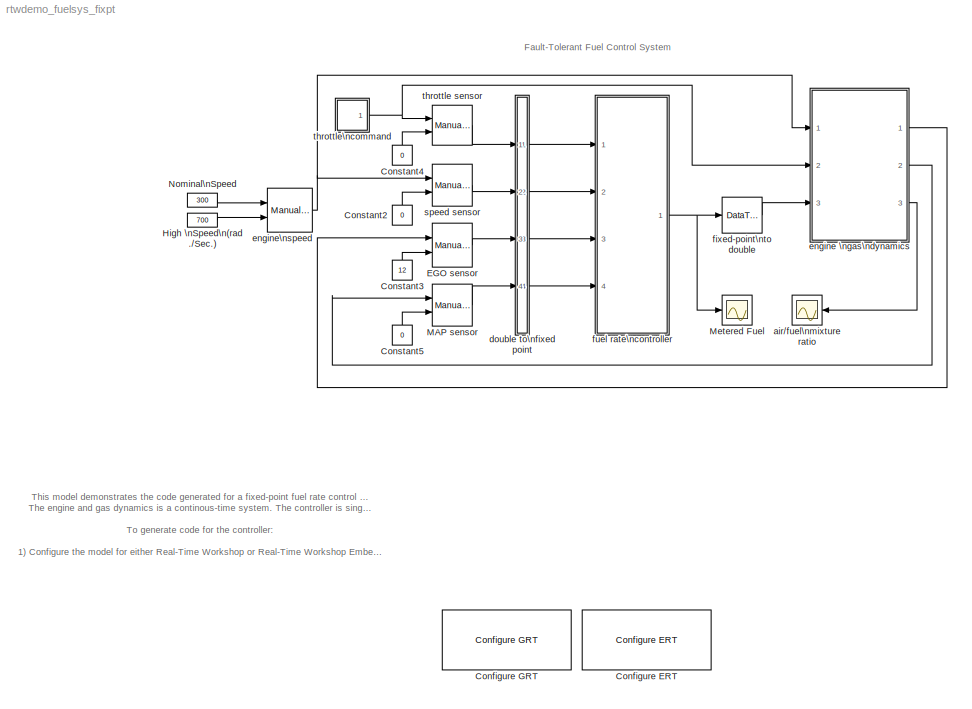
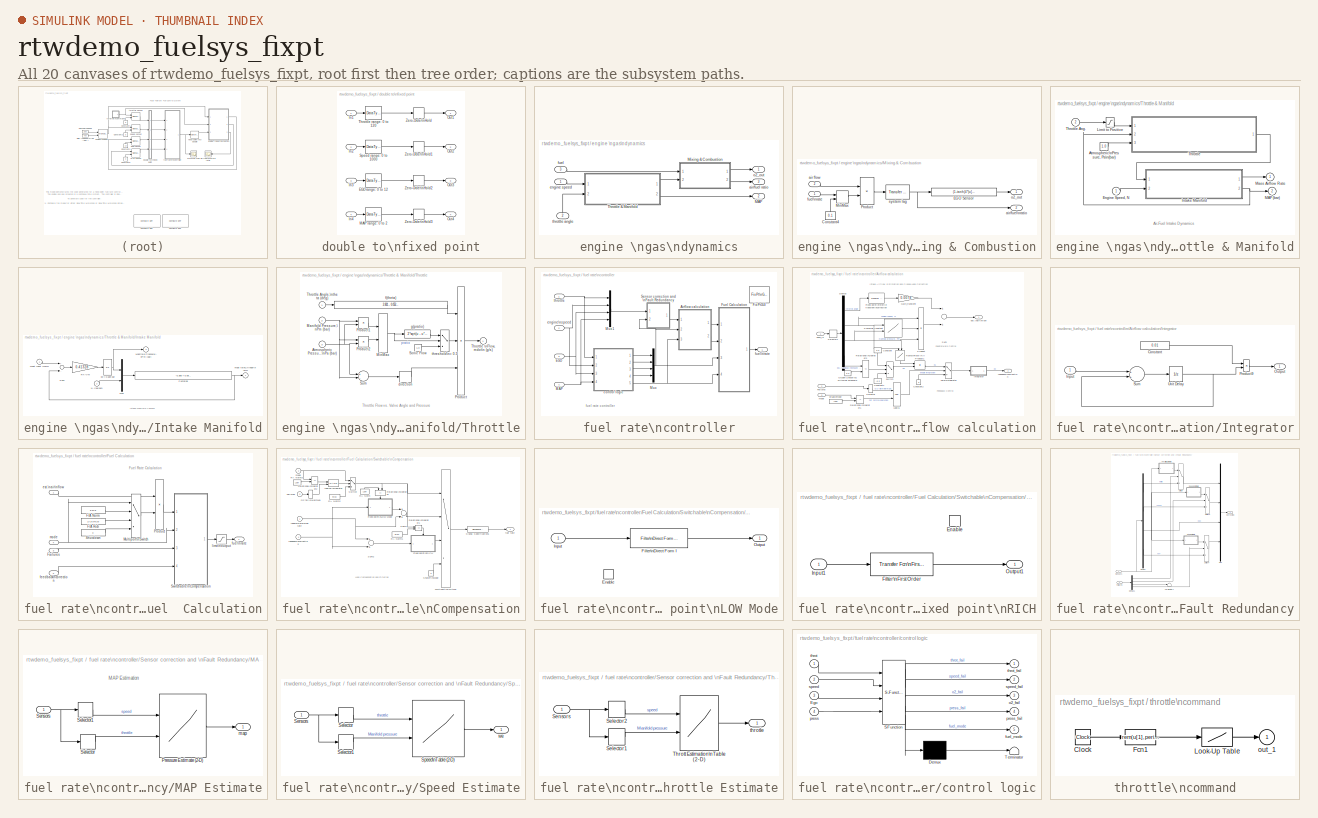
[diagram: thumbnail index - all 20 canvases of the model, root first then tree order]
MODEL rtwdemo_fuelsys_fixpt
KIND model
CONFIG PostLoadFcn = disp(rtwdemolicensecheck('sfsfc'))
CONFIG PreLoadFcn = load rtwdemo_fuelsys_fixpt_data.mat
BLOCK [Reference] Configure ERT  REF=rtwdemowidgets/Configure ERT
  Ports = []
  ShowPortLabels = on
  SourceBlock = rtwdemowidgets/Configure ERT
BLOCK [Reference] Configure GRT  REF=rtwdemowidgets/Configure GRT
  Ports = []
  ShowPortLabels = on
  SourceBlock = rtwdemowidgets/Configure GRT
BLOCK [Constant] Constant2
  Value = 0
BLOCK [Constant] Constant3
  Value = 12
BLOCK [Constant] Constant4
  Value = 0
BLOCK [Constant] Constant5
  Value = 0
BLOCK [Reference] EGO sensor  REF=simulink/Signal\nRouting/Manual Switch
  Ports = [2, 1]
  ShowPortLabels = on
  SourceBlock = simulink/Signal\nRouting/Manual Switch
  SourceType = Manual Switch
  action = 0
  sw = 1
BLOCK [Constant] High \nSpeed\n(rad.//Sec.)
  Value = 700
BLOCK [Reference] MAP sensor  REF=simulink/Signal\nRouting/Manual Switch
  Ports = [2, 1]
  ShowPortLabels = on
  SourceBlock = simulink/Signal\nRouting/Manual Switch
  SourceType = Manual Switch
  action = 0
  sw = 1
BLOCK [Scope] Metered Fuel
  DataFormat = Array
  LimitDataPoints = off
  NumInputPorts = 1
  Ports = [1]
  TickLabels = on
  TimeRange = 8
  YMax = 2.25
  YMin = 0.75
BLOCK [Constant] Nominal\nSpeed
  Value = 300
BLOCK [Scope] air//fuel\nmixture ratio
  DataFormat = Array
  LimitDataPoints = off
  NumInputPorts = 1
  Ports = [1]
  TickLabels = on
  TimeRange = 8
  YMax = 14.62
  YMin = 14.575
BLOCK [SubSystem] double to\nfixed point
  MaskDisplay = disp('')
  MaskIconFrame = on
  MaskIconOpaque = on
  MaskIconRotate = none
  MaskIconUnits = autoscale
  MinAlgLoopOccurrences = off
  Ports = [4, 4]
  PropExecContextAcrossSSBoundary = on
  RTWSystemCode = Auto
  TreatAsAtomicUnit = off
BLOCK [DataTypeConversion] double to\nfixed point/EGO range: 0 to 12
  OutDataTypeMode = Specify via dialog
  OutScaling = 2^-7
  RndMeth = Floor
BLOCK [Inport] double to\nfixed point/In1
  IconDisplay = Port number
  LatchInput = off
  Port = 1
BLOCK [Inport] double to\nfixed point/In2
  IconDisplay = Port number
  LatchInput = off
  Port = 2
BLOCK [Inport] double to\nfixed point/In3
  IconDisplay = Port number
  LatchInput = off
  Port = 3
BLOCK [Inport] double to\nfixed point/In4
  IconDisplay = Port number
  LatchInput = off
  Port = 4
BLOCK [DataTypeConversion] double to\nfixed point/MAP range: 0 to 2
  OutDataTypeMode = Specify via dialog
  OutScaling = 2^-7
  RndMeth = Floor
BLOCK [Outport] double to\nfixed point/Out1
  BusOutputAsStruct = off
  IconDisplay = Port number
BLOCK [Outport] double to\nfixed point/Out2
  BusOutputAsStruct = off
  IconDisplay = Port number
  Port = 2
BLOCK [Outport] double to\nfixed point/Out3
  BusOutputAsStruct = off
  IconDisplay = Port number
  Port = 3
BLOCK [Outport] double to\nfixed point/Out4
  BusOutputAsStruct = off
  IconDisplay = Port number
  Port = 4
BLOCK [DataTypeConversion] double to\nfixed point/Speed range: 0 to 1000
  OutDataTypeMode = Specify via dialog
  OutScaling = 2^-1
  RndMeth = Floor
BLOCK [DataTypeConversion] double to\nfixed point/Throttle range: 0 to 120
  OutDataTypeMode = Specify via dialog
  OutScaling = 2^-5
  RndMeth = Floor
BLOCK [ZeroOrderHold] double to\nfixed point/Zero-Order\nHold
  SampleTime = 0.01
BLOCK [ZeroOrderHold] double to\nfixed point/Zero-Order\nHold1
  SampleTime = 0.01
BLOCK [ZeroOrderHold] double to\nfixed point/Zero-Order\nHold2
  SampleTime = 0.01
BLOCK [ZeroOrderHold] double to\nfixed point/Zero-Order\nHold3
  SampleTime = 0.01
BLOCK [SubSystem] engine \ngas\ndynamics
  MinAlgLoopOccurrences = off
  Ports = [3, 3]
  PropExecContextAcrossSSBoundary = on
  RTWSystemCode = Auto
  TreatAsAtomicUnit = off
BLOCK [Outport] engine \ngas\ndynamics/MAP
  BusOutputAsStruct = off
  IconDisplay = Port number
  InitialOutput = 0
  Port = 2
BLOCK [SubSystem] engine \ngas\ndynamics/Mixing & Combustion
  MinAlgLoopOccurrences = off
  Ports = [2, 2]
  PropExecContextAcrossSSBoundary = on
  RTWSystemCode = Auto
  TreatAsAtomicUnit = off
BLOCK [Constant] engine \ngas\ndynamics/Mixing & Combustion/Constant4
  Value = 0.1
BLOCK [Fcn] engine \ngas\ndynamics/Mixing & Combustion/EGO Sensor
  Expr = (1-tanh(4*(u[1]-14.6)))/2
BLOCK [MinMax] engine \ngas\ndynamics/Mixing & Combustion/MinMax
  Function = max
  Inputs = 2
  Ports = [2, 1]
BLOCK [Product] engine \ngas\ndynamics/Mixing & Combustion/Product
  Inputs = */
  Ports = [2, 1]
BLOCK [Inport] engine \ngas\ndynamics/Mixing & Combustion/air flow
  IconDisplay = Port number
  LatchInput = off
  Port = 2
BLOCK [Outport] engine \ngas\ndynamics/Mixing & Combustion/air//fuel\nratio
  BusOutputAsStruct = off
  IconDisplay = Port number
  InitialOutput = 0
  Port = 2
BLOCK [Inport] engine \ngas\ndynamics/Mixing & Combustion/fuel\nrate
  IconDisplay = Port number
  LatchInput = off
  Port = 1
BLOCK [Outport] engine \ngas\ndynamics/Mixing & Combustion/o2_out
  BusOutputAsStruct = off
  IconDisplay = Port number
  InitialOutput = 0
BLOCK [Reference] engine \ngas\ndynamics/Mixing & Combustion/system lag  REF=simulink_extras/Additional\nLinear/Transfer Fcn\n(with initial outputs)
  D = [1 3]
  N = 3
  Ports = [1, 1]
  ShowPortLabels = on
  SourceBlock = simulink_extras/Additional\nLinear/Transfer Fcn\n(with initial outputs)
  SourceType = Transfer Function with Initial Outputs
  U0 = 1/14.6
  Y0 = 1/14.6
BLOCK [SubSystem] engine \ngas\ndynamics/Throttle & Manifold
  MinAlgLoopOccurrences = off
  Ports = [2, 2]
  PropExecContextAcrossSSBoundary = on
  RTWSystemCode = Auto
  TreatAsAtomicUnit = off
BLOCK [Constant] engine \ngas\ndynamics/Throttle & Manifold/Atmospheric\nPressure, Pa\n(bar)
  Value = 1.0
BLOCK [Inport] engine \ngas\ndynamics/Throttle & Manifold/Engine Speed, N
  IconDisplay = Port number
  LatchInput = off
  Port = 1
BLOCK [SubSystem] engine \ngas\ndynamics/Throttle & Manifold/Intake Manifold
  MinAlgLoopOccurrences = off
  Ports = [2, 2]
  PropExecContextAcrossSSBoundary = on
  RTWSystemCode = Auto
  TreatAsAtomicUnit = off
BLOCK [Outport] engine \ngas\ndynamics/Throttle & Manifold/Intake Manifold/Manifold Pressure,\nPm (bar)
  BusOutputAsStruct = off
  IconDisplay = Port number
  InitialOutput = 0
  Port = 2
BLOCK [Mux] engine \ngas\ndynamics/Throttle & Manifold/Intake Manifold/Mux
  Inputs = 2
  Ports = [2, 1]
BLOCK [Inport] engine \ngas\ndynamics/Throttle & Manifold/Intake Manifold/N (rad//sec)
  IconDisplay = Port number
  LatchInput = off
  Port = 2
BLOCK [Fcn] engine \ngas\ndynamics/Throttle & Manifold/Intake Manifold/Pumping
  Expr = -0.366 + 0.08979*u[1]*u[2] - 0.0337*u[2]*u[1]*u[1] + 0.0001*u[1]*u[2]*u[2]
BLOCK [Gain] engine \ngas\ndynamics/Throttle & Manifold/Intake Manifold/RT//Vm
  Gain = 0.41328
BLOCK [Sum] engine \ngas\ndynamics/Throttle & Manifold/Intake Manifold/Sum
  Inputs = +-
  Ports = [2, 1]
BLOCK [Inport] engine \ngas\ndynamics/Throttle & Manifold/Intake Manifold/mdot Input \n(g//s)
  IconDisplay = Port number
  LatchInput = off
  Port = 1
BLOCK [Outport] engine \ngas\ndynamics/Throttle & Manifold/Intake Manifold/mdot to\nCylinder\n (g//s)
  BusOutputAsStruct = off
  IconDisplay = Port number
  InitialOutput = 0
BLOCK [Integrator] engine \ngas\ndynamics/Throttle & Manifold/Intake Manifold/p0 = 0.589 bar
  InitialCondition = .589
  Ports = [1, 1]
BLOCK [Saturate] engine \ngas\ndynamics/Throttle & Manifold/Limit to Positive
  LowerLimit = 0
  UpperLimit = inf
BLOCK [Outport] engine \ngas\ndynamics/Throttle & Manifold/MAP (bar)
  BusOutputAsStruct = off
  IconDisplay = Port number
  InitialOutput = 0
  Port = 2
BLOCK [Outport] engine \ngas\ndynamics/Throttle & Manifold/Mass Airflow Rate
  BusOutputAsStruct = off
  IconDisplay = Port number
  InitialOutput = 0
BLOCK [SubSystem] engine \ngas\ndynamics/Throttle & Manifold/Throttle
  MinAlgLoopOccurrences = off
  Ports = [3, 1]
  PropExecContextAcrossSSBoundary = on
  RTWSystemCode = Auto
  TreatAsAtomicUnit = off
BLOCK [Inport] engine \ngas\ndynamics/Throttle & Manifold/Throttle Ang.
  IconDisplay = Port number
  LatchInput = off
  Port = 2
BLOCK [Inport] engine \ngas\ndynamics/Throttle & Manifold/Throttle/Atmospheric Pressure,\nPa (bar) 
  IconDisplay = Port number
  LatchInput = off
  Port = 3
BLOCK [Inport] engine \ngas\ndynamics/Throttle & Manifold/Throttle/Manifold Pressure,\nPm (bar)
  IconDisplay = Port number
  LatchInput = off
  Port = 2
BLOCK [MinMax] engine \ngas\ndynamics/Throttle & Manifold/Throttle/MinMax
  Function = min
  Inputs = 2
  Ports = [2, 1]
BLOCK [Product] engine \ngas\ndynamics/Throttle & Manifold/Throttle/Product
  Inputs = 3
  Ports = [3, 1]
BLOCK [Product] engine \ngas\ndynamics/Throttle & Manifold/Throttle/Product1
  Inputs = */
  Ports = [2, 1]
BLOCK [Product] engine \ngas\ndynamics/Throttle & Manifold/Throttle/Product2
  Inputs = /*
  Ports = [2, 1]
BLOCK [Constant] engine \ngas\ndynamics/Throttle & Manifold/Throttle/Sonic Flow 
  Value = 1.0
BLOCK [Sum] engine \ngas\ndynamics/Throttle & Manifold/Throttle/Sum
  Inputs = +-
  Ports = [2, 1]
BLOCK [Inport] engine \ngas\ndynamics/Throttle & Manifold/Throttle/Throttle Angle,\ntheta (deg)
  IconDisplay = Port number
  LatchInput = off
  Port = 1
BLOCK [Outport] engine \ngas\ndynamics/Throttle & Manifold/Throttle/Throttle \nFlow, mdot\n (g//s)
  BusOutputAsStruct = off
  IconDisplay = Port number
  InitialOutput = 0
BLOCK [Signum] engine \ngas\ndynamics/Throttle & Manifold/Throttle/direction
BLOCK [Fcn] engine \ngas\ndynamics/Throttle & Manifold/Throttle/f(theta)
  Expr = 2.821 - 0.05231*u[1] + 0.10299*u[1]*u[1] - 0.00063*u[1]*u[1]*u[1]
BLOCK [Fcn] engine \ngas\ndynamics/Throttle & Manifold/Throttle/g(pratio)
  Expr = 2*sqrt(u - u*u)
BLOCK [Switch] engine \ngas\ndynamics/Throttle & Manifold/Throttle/threshold\n= 0.5
  Threshold = 0.5
BLOCK [Outport] engine \ngas\ndynamics/air//fuel ratio
  BusOutputAsStruct = off
  IconDisplay = Port number
  InitialOutput = 0
  Port = 3
BLOCK [Inport] engine \ngas\ndynamics/engine speed
  IconDisplay = Port number
  LatchInput = off
  Port = 1
BLOCK [Inport] engine \ngas\ndynamics/fuel
  IconDisplay = Port number
  LatchInput = off
  Port = 3
BLOCK [Outport] engine \ngas\ndynamics/o2_out
  BusOutputAsStruct = off
  IconDisplay = Port number
  InitialOutput = 0
BLOCK [Inport] engine \ngas\ndynamics/throttle angle
  IconDisplay = Port number
  LatchInput = off
  Port = 2
BLOCK [Reference] engine\nspeed  REF=simulink/Signal\nRouting/Manual Switch
  Ports = [2, 1]
  ShowPortLabels = on
  SourceBlock = simulink/Signal\nRouting/Manual Switch
  SourceType = Manual Switch
  action = 0
  sw = 1
BLOCK [DataTypeConversion] fixed-point\nto double
  OutDataTypeMode = double
  RndMeth = Floor
  SaturateOnIntegerOverflow = off
BLOCK [SubSystem] fuel rate\ncontroller
  MinAlgLoopOccurrences = off
  Ports = [4, 1]
  PropExecContextAcrossSSBoundary = on
  RTWSystemCode = Auto
  TreatAsAtomicUnit = off
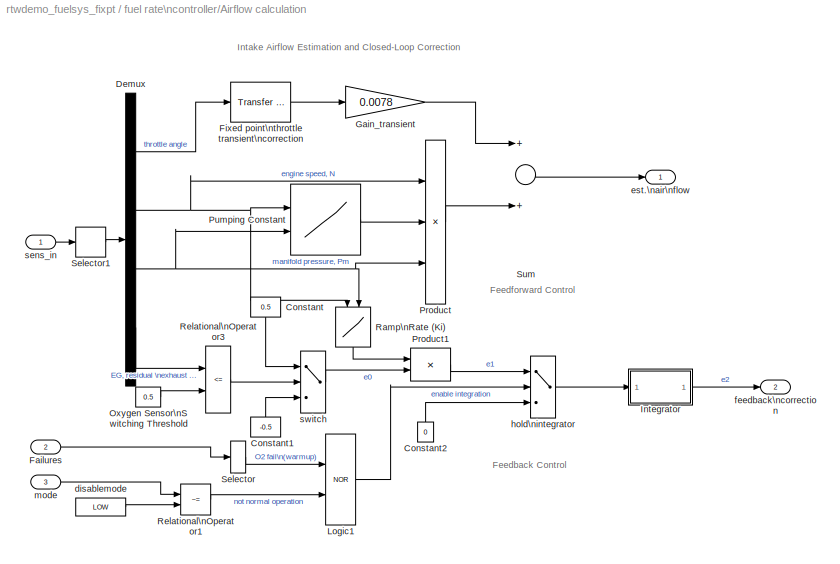
BLOCK [SubSystem] fuel rate\ncontroller/Airflow calculation
  MinAlgLoopOccurrences = off
  Ports = [3, 2]
  PropExecContextAcrossSSBoundary = on
  RTWSystemCode = Auto
  TreatAsAtomicUnit = off
BLOCK [Constant] fuel rate\ncontroller/Airflow calculation/Constant
  OutDataTypeMode = Inherit via back propagation
  Value = 0.5
BLOCK [Constant] fuel rate\ncontroller/Airflow calculation/Constant1
  OutDataTypeMode = Inherit via back propagation
  Value = -0.5
BLOCK [Constant] fuel rate\ncontroller/Airflow calculation/Constant2
  OutDataTypeMode = Inherit via back propagation
  Value = 0
BLOCK [Demux] fuel rate\ncontroller/Airflow calculation/Demux
  Ports = [1, 4]
BLOCK [Inport] fuel rate\ncontroller/Airflow calculation/Failures
  IconDisplay = Port number
  LatchInput = off
  Port = 2
BLOCK [Reference] fuel rate\ncontroller/Airflow calculation/Fixed point\nthrottle transient\ncorrection  REF=simulink/Discrete/Transfer Fcn\nLead or Lag
  DoSatur = off
  ICPrevInput = 0.0
  ICPrevOutput = 0.0
  PoleZ = 0.8
  Ports = [1, 1]
  RndMeth = Floor
  ShowPortLabels = on
  SourceBlock = simulink/Discrete/Transfer Fcn\nLead or Lag
  SourceType = Lead or Lag Compensator
  ZeroZ = 1
BLOCK [Gain] fuel rate\ncontroller/Airflow calculation/Gain_transient
  Gain = 0.0078
  OutDataTypeMode = Specify via dialog
  OutScaling = 2^-8
BLOCK [SubSystem] fuel rate\ncontroller/Airflow calculation/Integrator
  Description = REQ: PM=30deg, GM=6db\n
  MaskDisplay = disp('T/(Z-1)')
  MaskIconFrame = on
  MaskIconOpaque = on
  MaskIconRotate = none
  MaskIconUnits = autoscale
  MinAlgLoopOccurrences = off
  Ports = [1, 1]
  PropExecContextAcrossSSBoundary = on
  RTWSystemCode = Auto
  TreatAsAtomicUnit = off
BLOCK [Constant] fuel rate\ncontroller/Airflow calculation/Integrator/Constant
  OutDataTypeMode = Specify via dialog
  OutScaling = 2^-12
  Value = 0.01
BLOCK [Inport] fuel rate\ncontroller/Airflow calculation/Integrator/Input
  IconDisplay = Port number
  LatchInput = off
  Port = 1
BLOCK [Outport] fuel rate\ncontroller/Airflow calculation/Integrator/Output
  BusOutputAsStruct = off
  IconDisplay = Port number
BLOCK [Product] fuel rate\ncontroller/Airflow calculation/Integrator/Product9
  InputSameDT = off
  OutScaling = 2^-8
  Ports = [2, 1]
  RndMeth = Floor
BLOCK [Sum] fuel rate\ncontroller/Airflow calculation/Integrator/Sum
  InputSameDT = off
  LockScale = on
  OutDataType = sfix(32)
  OutDataTypeMode = Inherit via internal rule
  OutScaling = 2^(-26)
  Ports = [2, 1]
  Tag = S16 2^-10
BLOCK [UnitDelay] fuel rate\ncontroller/Airflow calculation/Integrator/Unit Delay
  SampleTime = 0.01
  X0 = -1
BLOCK [Logic] fuel rate\ncontroller/Airflow calculation/Logic1
  Operator = NOR
  Ports = [2, 1]
BLOCK [Constant] fuel rate\ncontroller/Airflow calculation/Oxygen Sensor\nSwitching Threshold
  OutDataTypeMode = Inherit via back propagation
  Value = 0.5
BLOCK [Product] fuel rate\ncontroller/Airflow calculation/Product
  InputSameDT = off
  Inputs = 3
  OutDataTypeMode = Specify via dialog
  OutScaling = 2^-8
  Ports = [3, 1]
  RndMeth = Floor
BLOCK [Product] fuel rate\ncontroller/Airflow calculation/Product1
  Ports = [2, 1]
  RndMeth = Floor
BLOCK [Lookup2D] fuel rate\ncontroller/Airflow calculation/Pumping Constant
  ColumnIndex = c166_fixpt_evenspace_cleanup(press,sfix(16),2^-14)
  DialogController = Simulink.DDGSource
  InputSameDT = off
  LookUpMeth = Interpolation-Use End Values
  OutDataTypeMode = Specify via dialog
  OutScaling = 2^-16
  OutputValues = pumpCon
  RowIndex = SpeedVect
BLOCK [Lookup2D] fuel rate\ncontroller/Airflow calculation/Ramp\nRate (Ki)
  ColumnIndex = c166_fixpt_evenspace_cleanup([0:0.2:1],sfix(16),2^-14)
  DialogController = Simulink.DDGSource
  InputSameDT = off
  LookUpMeth = Interpolation-Use End Values
  OutDataTypeMode = Specify via dialog
  OutScaling = 2^-8
  OutputValues = [1:5]'*[1:6]*Ki
  RowIndex = [100:100:500]
BLOCK [RelationalOperator] fuel rate\ncontroller/Airflow calculation/Relational\nOperator1
  Operator = ~=
BLOCK [RelationalOperator] fuel rate\ncontroller/Airflow calculation/Relational\nOperator3
  Operator = <=
BLOCK [Selector] fuel rate\ncontroller/Airflow calculation/Selector
  Elements = 3
  InputPortWidth = 4
  Ports = [1, 1]
BLOCK [Selector] fuel rate\ncontroller/Airflow calculation/Selector1
  Elements = [1 2 4 3]
  InputPortWidth = 4
  Ports = [1, 1]
BLOCK [Sum] fuel rate\ncontroller/Airflow calculation/Sum
  Inputs = 2
  Ports = [2, 1]
BLOCK [Constant] fuel rate\ncontroller/Airflow calculation/disablemode
  Value = LOW
BLOCK [Outport] fuel rate\ncontroller/Airflow calculation/est.\nair\nflow
  BusOutputAsStruct = off
  IconDisplay = Port number
  InitialOutput = 0
BLOCK [Outport] fuel rate\ncontroller/Airflow calculation/feedback\ncorrection
  BusOutputAsStruct = off
  IconDisplay = Port number
  InitialOutput = 0
  Port = 2
BLOCK [Switch] fuel rate\ncontroller/Airflow calculation/hold\nintegrator
  Threshold = 1
BLOCK [Inport] fuel rate\ncontroller/Airflow calculation/mode
  IconDisplay = Port number
  LatchInput = off
  Port = 3
BLOCK [Inport] fuel rate\ncontroller/Airflow calculation/sens_in
  IconDisplay = Port number
  LatchInput = off
  Port = 1
BLOCK [Switch] fuel rate\ncontroller/Airflow calculation/switch
  Criteria = u2 ~= 0
  Threshold = 1
BLOCK [Inport] fuel rate\ncontroller/EGO
  IconDisplay = Port number
  LatchInput = off
  Port = 3
BLOCK [Reference] fuel rate\ncontroller/FixPtGUI  REF=fixpt_lib_4/FixPt\nGUI  (lib defined in mdl_ef9dacb0d1df)
  Ports = []
  ShowPortLabels = on
  SourceBlock = fixpt_lib_4/FixPt\nGUI
  SourceType = Fixed-Point GUI
BLOCK [SubSystem] fuel rate\ncontroller/Fuel  Calculation
  MinAlgLoopOccurrences = off
  Ports = [4, 1]
  PropExecContextAcrossSSBoundary = on
  RTWSystemCode = Auto
  TreatAsAtomicUnit = off
BLOCK [Constant] fuel rate\ncontroller/Fuel  Calculation/F//A Norm
  OutDataTypeMode = Inherit via back propagation
  Value = 1/14.6
BLOCK [Constant] fuel rate\ncontroller/Fuel  Calculation/F//A Rich
  OutDataTypeMode = Inherit via back propagation
  Value = 1/(14.6*0.8)
BLOCK [Inport] fuel rate\ncontroller/Fuel  Calculation/Failures
  IconDisplay = Port number
  LatchInput = off
  Port = 3
BLOCK [MultiPortSwitch] fuel rate\ncontroller/Fuel  Calculation/Multiport\nSwitch
  Inputs = 3
  Ports = [4, 1]
BLOCK [Product] fuel rate\ncontroller/Fuel  Calculation/Product
  OutDataTypeMode = Specify via dialog
  OutScaling = 2^-12
  Ports = [2, 1]
  RndMeth = Floor
BLOCK [Constant] fuel rate\ncontroller/Fuel  Calculation/Shutdown
  OutDataTypeMode = Inherit via back propagation
  Value = 0
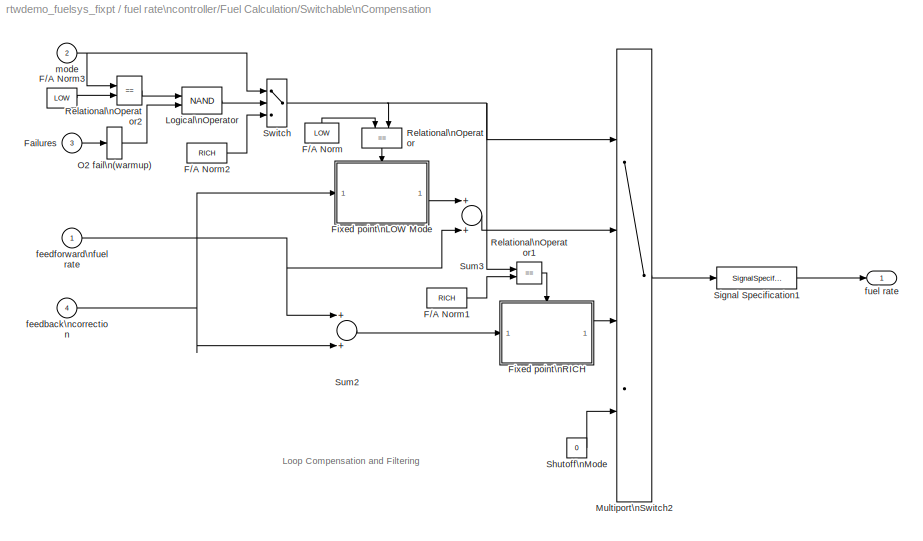
BLOCK [SubSystem] fuel rate\ncontroller/Fuel  Calculation/Switchable\nCompensation
  MaskIconFrame = on
  MaskIconOpaque = on
  MaskIconRotate = none
  MaskIconUnits = autoscale
  MinAlgLoopOccurrences = off
  Ports = [4, 1]
  PropExecContextAcrossSSBoundary = on
  RTWSystemCode = Auto
  TreatAsAtomicUnit = off
BLOCK [Constant] fuel rate\ncontroller/Fuel  Calculation/Switchable\nCompensation/F//A Norm
  Value = LOW
BLOCK [Constant] fuel rate\ncontroller/Fuel  Calculation/Switchable\nCompensation/F//A Norm1
  Value = RICH
BLOCK [Constant] fuel rate\ncontroller/Fuel  Calculation/Switchable\nCompensation/F//A Norm2
  Value = RICH
BLOCK [Constant] fuel rate\ncontroller/Fuel  Calculation/Switchable\nCompensation/F//A Norm3
  Value = LOW
BLOCK [Inport] fuel rate\ncontroller/Fuel  Calculation/Switchable\nCompensation/Failures
  IconDisplay = Port number
  LatchInput = off
  Port = 3
BLOCK [SubSystem] fuel rate\ncontroller/Fuel  Calculation/Switchable\nCompensation/Fixed point\nLOW Mode
  MaskCallbackString = ||||
  MaskDisplay = dpoly(num,den,'z')
  MaskEnableString = on,on,on,on,on
  MaskIconFrame = on
  MaskIconOpaque = off
  MaskIconRotate = none
  MaskIconUnits = autoscale
  MaskPromptString = numerator polynomial|denominator polynomial|initial input|initial output|sample time
  MaskStyleString = edit,edit,edit,edit,edit
  MaskTabNameString = ,,,,
  MaskToolTipString = on,on,on,on,on
  MaskTunableValueString = on,on,on,on,on
  MaskType = enabled discrete-time transfer function
  MaskValueString = B1|A1|-0.01|-0.01|0.01
  MaskVarAliasString = ,,,,
  MaskVariables = num=@1;den=@2;u0=@3;y0=@4;Ts=@5;
  MaskVisibilityString = on,on,on,on,on
  MinAlgLoopOccurrences = off
  Ports = [1, 1, 1]
  PropExecContextAcrossSSBoundary = on
  RTWSystemCode = Auto
  TreatAsAtomicUnit = on
BLOCK [EnablePort] fuel rate\ncontroller/Fuel  Calculation/Switchable\nCompensation/Fixed point\nLOW Mode/Enable
  Ports = []
  StatesWhenEnabling = reset
BLOCK [Reference] fuel rate\ncontroller/Fuel  Calculation/Switchable\nCompensation/Fixed point\nLOW Mode/Filter\nDirect Form I  REF=fixpt_lib_4/Filters/Filter\nDirect Form I  (lib defined in mdl_ef9dacb0d1df)
  DenCoefVec = A1(2)
  DoSatur = off
  ICPrevInput = 0.0
  ICPrevOutput = 0.0
  NumCoefVec = B1
  Ports = [1, 1]
  RndMeth = Floor
  ShowPortLabels = on
  SourceBlock = fixpt_lib_4/Filters/Filter\nDirect Form I
  SourceType = Transfer Fcn Direct Form I
BLOCK [Inport] fuel rate\ncontroller/Fuel  Calculation/Switchable\nCompensation/Fixed point\nLOW Mode/Input
  IconDisplay = Port number
  LatchInput = off
  Port = 1
BLOCK [Outport] fuel rate\ncontroller/Fuel  Calculation/Switchable\nCompensation/Fixed point\nLOW Mode/Output
  BusOutputAsStruct = off
  IconDisplay = Port number
BLOCK [SubSystem] fuel rate\ncontroller/Fuel  Calculation/Switchable\nCompensation/Fixed point\nRICH
  MaskCallbackString = ||||
  MaskDisplay = dpoly(num,den,'z')
  MaskEnableString = on,on,on,on,on
  MaskIconFrame = on
  MaskIconOpaque = off
  MaskIconRotate = none
  MaskIconUnits = autoscale
  MaskPromptString = numerator polynomial|denominator polynomial|initial input|initial output|sample time
  MaskStyleString = edit,edit,edit,edit,edit
  MaskTabNameString = ,,,,
  MaskToolTipString = on,on,on,on,on
  MaskTunableValueString = on,on,on,on,on
  MaskType = enabled discrete-time transfer function
  MaskValueString = B2|A2|1.6|1.6|0.01
  MaskVarAliasString = ,,,,
  MaskVariables = num=@1;den=@2;u0=@3;y0=@4;Ts=@5;
  MaskVisibilityString = on,on,on,on,on
  MinAlgLoopOccurrences = off
  Ports = [1, 1, 1]
  PropExecContextAcrossSSBoundary = on
  RTWSystemCode = Auto
  TreatAsAtomicUnit = on
BLOCK [EnablePort] fuel rate\ncontroller/Fuel  Calculation/Switchable\nCompensation/Fixed point\nRICH/Enable
  Ports = []
  StatesWhenEnabling = reset
BLOCK [Reference] fuel rate\ncontroller/Fuel  Calculation/Switchable\nCompensation/Fixed point\nRICH/Filter\nFirst Order  REF=simulink/Discrete/Transfer Fcn\nFirst Order
  DoSatur = off
  ICPrevOutput = y0
  PoleZ = -den(2)
  Ports = [1, 1]
  RndMeth = Floor
  ShowPortLabels = on
  SourceBlock = simulink/Discrete/Transfer Fcn\nFirst Order
  SourceType = First Order Transfer Fcn
BLOCK [Inport] fuel rate\ncontroller/Fuel  Calculation/Switchable\nCompensation/Fixed point\nRICH/Input1
  IconDisplay = Port number
  LatchInput = off
  Port = 1
BLOCK [Outport] fuel rate\ncontroller/Fuel  Calculation/Switchable\nCompensation/Fixed point\nRICH/Output1
  BusOutputAsStruct = off
  IconDisplay = Port number
BLOCK [Logic] fuel rate\ncontroller/Fuel  Calculation/Switchable\nCompensation/Logical\nOperator
  Operator = NAND
  Ports = [2, 1]
BLOCK [MultiPortSwitch] fuel rate\ncontroller/Fuel  Calculation/Switchable\nCompensation/Multiport\nSwitch2
  Inputs = 3
  Ports = [4, 1]
BLOCK [Selector] fuel rate\ncontroller/Fuel  Calculation/Switchable\nCompensation/O2 fail\n(warmup)
  Elements = 3
  InputPortWidth = 4
  Ports = [1, 1]
BLOCK [RelationalOperator] fuel rate\ncontroller/Fuel  Calculation/Switchable\nCompensation/Relational\nOperator
  Operator = ==
BLOCK [RelationalOperator] fuel rate\ncontroller/Fuel  Calculation/Switchable\nCompensation/Relational\nOperator1
  Operator = ==
BLOCK [RelationalOperator] fuel rate\ncontroller/Fuel  Calculation/Switchable\nCompensation/Relational\nOperator2
  Operator = ==
BLOCK [Constant] fuel rate\ncontroller/Fuel  Calculation/Switchable\nCompensation/Shutoff\nMode
  OutDataTypeMode = Inherit via back propagation
  Value = 0
BLOCK [SignalSpecification] fuel rate\ncontroller/Fuel  Calculation/Switchable\nCompensation/Signal Specification1
  SampleTime = 0.01
BLOCK [Sum] fuel rate\ncontroller/Fuel  Calculation/Switchable\nCompensation/Sum2
  OutDataTypeMode = Specify via dialog
  OutScaling = 2^-8
  Ports = [2, 1]
BLOCK [Sum] fuel rate\ncontroller/Fuel  Calculation/Switchable\nCompensation/Sum3
  InputSameDT = off
  Ports = [2, 1]
BLOCK [Switch] fuel rate\ncontroller/Fuel  Calculation/Switchable\nCompensation/Switch
  Threshold = 1
BLOCK [Inport] fuel rate\ncontroller/Fuel  Calculation/Switchable\nCompensation/feedback\ncorrection
  IconDisplay = Port number
  LatchInput = off
  Port = 4
BLOCK [Inport] fuel rate\ncontroller/Fuel  Calculation/Switchable\nCompensation/feedforward\nfuel rate
  IconDisplay = Port number
  LatchInput = off
  Port = 1
BLOCK [Outport] fuel rate\ncontroller/Fuel  Calculation/Switchable\nCompensation/fuel rate
  BusOutputAsStruct = off
  IconDisplay = Port number
  InitialOutput = 0
BLOCK [Inport] fuel rate\ncontroller/Fuel  Calculation/Switchable\nCompensation/mode
  IconDisplay = Port number
  LatchInput = off
  Port = 2
BLOCK [Inport] fuel rate\ncontroller/Fuel  Calculation/est.\nair\nflow
  IconDisplay = Port number
  LatchInput = off
  Port = 1
BLOCK [Inport] fuel rate\ncontroller/Fuel  Calculation/feedback\ncorrection
  IconDisplay = Port number
  LatchInput = off
  Port = 2
BLOCK [Outport] fuel rate\ncontroller/Fuel  Calculation/fuel\nrate
  BusOutputAsStruct = off
  IconDisplay = Port number
  InitialOutput = 0
BLOCK [Saturate] fuel rate\ncontroller/Fuel  Calculation/limit\noutput
  LowerLimit = 0
  UpperLimit = 100
BLOCK [Inport] fuel rate\ncontroller/Fuel  Calculation/mode
  IconDisplay = Port number
  LatchInput = off
  Port = 4
BLOCK [Inport] fuel rate\ncontroller/MAP
  IconDisplay = Port number
  LatchInput = off
  Port = 4
BLOCK [Mux] fuel rate\ncontroller/Mux
  Ports = [4, 1]
BLOCK [Mux] fuel rate\ncontroller/Mux1
  Ports = [4, 1]
BLOCK [SubSystem] fuel rate\ncontroller/Sensor correction and \nFault Redundancy
  MinAlgLoopOccurrences = off
  Ports = [2, 1]
  PropExecContextAcrossSSBoundary = on
  RTWSystemCode = Auto
  TreatAsAtomicUnit = off
BLOCK [Outport] fuel rate\ncontroller/Sensor correction and \nFault Redundancy/Corrected
  BusOutputAsStruct = off
  IconDisplay = Port number
  InitialOutput = 0
BLOCK [Demux] fuel rate\ncontroller/Sensor correction and \nFault Redundancy/Demux
  Ports = [1, 4]
BLOCK [Demux] fuel rate\ncontroller/Sensor correction and \nFault Redundancy/Demux1
  Ports = [1, 4]
BLOCK [Inport] fuel rate\ncontroller/Sensor correction and \nFault Redundancy/Failures
  IconDisplay = Port number
  LatchInput = off
  Port = 2
BLOCK [SubSystem] fuel rate\ncontroller/Sensor correction and \nFault Redundancy/MAP Estimate
  MinAlgLoopOccurrences = off
  Ports = [1, 1]
  PropExecContextAcrossSSBoundary = on
  RTWSystemCode = Auto
  TreatAsAtomicUnit = on
BLOCK [Lookup2D] fuel rate\ncontroller/Sensor correction and \nFault Redundancy/MAP Estimate/Pressure Estimate (2-D)
  ColumnIndex = ThrotVect
  DialogController = Simulink.DDGSource
  InputSameDT = off
  LookUpMeth = Interpolation-Use End Values
  OutDataTypeMode = Specify via dialog
  OutScaling = 2^-14
  OutputValues = PressEst
  RowIndex = SpeedVect
BLOCK [Selector] fuel rate\ncontroller/Sensor correction and \nFault Redundancy/MAP Estimate/Selector
  InputPortWidth = 4
  Ports = [1, 1]
BLOCK [Selector] fuel rate\ncontroller/Sensor correction and \nFault Redundancy/MAP Estimate/Selector1
  Elements = 2
  InputPortWidth = 4
  Ports = [1, 1]
BLOCK [Inport] fuel rate\ncontroller/Sensor correction and \nFault Redundancy/MAP Estimate/Sensors
  IconDisplay = Port number
  LatchInput = off
  Port = 1
BLOCK [Outport] fuel rate\ncontroller/Sensor correction and \nFault Redundancy/MAP Estimate/map
  BusOutputAsStruct = off
  IconDisplay = Port number
  InitialOutput = 0
BLOCK [Mux] fuel rate\ncontroller/Sensor correction and \nFault Redundancy/Mux
  Ports = [4, 1]
BLOCK [Inport] fuel rate\ncontroller/Sensor correction and \nFault Redundancy/Sensors
  IconDisplay = Port number
  LatchInput = off
  Port = 1
BLOCK [SubSystem] fuel rate\ncontroller/Sensor correction and \nFault Redundancy/Speed Estimate
  MinAlgLoopOccurrences = off
  Ports = [1, 1]
  PropExecContextAcrossSSBoundary = on
  RTWSystemCode = Auto
  TreatAsAtomicUnit = on
BLOCK [Selector] fuel rate\ncontroller/Sensor correction and \nFault Redundancy/Speed Estimate/Selector
  InputPortWidth = 4
  Ports = [1, 1]
BLOCK [Selector] fuel rate\ncontroller/Sensor correction and \nFault Redundancy/Speed Estimate/Selector1
  Elements = 4
  InputPortWidth = 4
  Ports = [1, 1]
BLOCK [Inport] fuel rate\ncontroller/Sensor correction and \nFault Redundancy/Speed Estimate/Sensors
  IconDisplay = Port number
  LatchInput = off
  Port = 1
BLOCK [Lookup2D] fuel rate\ncontroller/Sensor correction and \nFault Redundancy/Speed Estimate/Speed\nTable (2-D)
  ColumnIndex = c166_fixpt_evenspace_cleanup(press,sfix(16),2^-14)
  DialogController = Simulink.DDGSource
  InputSameDT = off
  LookUpMeth = Interpolation-Use End Values
  OutDataTypeMode = Specify via dialog
  OutScaling = 2^-1
  OutputValues = SpeedEst
  RowIndex = ThrotVect
BLOCK [Outport] fuel rate\ncontroller/Sensor correction and \nFault Redundancy/Speed Estimate/we
  BusOutputAsStruct = off
  IconDisplay = Port number
  InitialOutput = 0
BLOCK [Switch] fuel rate\ncontroller/Sensor correction and \nFault Redundancy/Switch
  Threshold = 1
BLOCK [Switch] fuel rate\ncontroller/Sensor correction and \nFault Redundancy/Switch3
  Threshold = 1
BLOCK [Switch] fuel rate\ncontroller/Sensor correction and \nFault Redundancy/Switch4
  InputSameDT = off
  Threshold = 1
BLOCK [Terminator] fuel rate\ncontroller/Sensor correction and \nFault Redundancy/Terminator1
BLOCK [SubSystem] fuel rate\ncontroller/Sensor correction and \nFault Redundancy/Throttle Estimate
  MinAlgLoopOccurrences = off
  Ports = [1, 1]
  PropExecContextAcrossSSBoundary = on
  RTWSystemCode = Auto
  TreatAsAtomicUnit = on
BLOCK [Selector] fuel rate\ncontroller/Sensor correction and \nFault Redundancy/Throttle Estimate/Selector1
  Elements = 4
  InputPortWidth = 4
  Ports = [1, 1]
BLOCK [Selector] fuel rate\ncontroller/Sensor correction and \nFault Redundancy/Throttle Estimate/Selector2
  Elements = 2
  InputPortWidth = 4
  Ports = [1, 1]
BLOCK [Inport] fuel rate\ncontroller/Sensor correction and \nFault Redundancy/Throttle Estimate/Sensors
  IconDisplay = Port number
  LatchInput = off
  Port = 1
BLOCK [Lookup2D] fuel rate\ncontroller/Sensor correction and \nFault Redundancy/Throttle Estimate/Thrott Estimation\nTable (2-D)
  ColumnIndex = c166_fixpt_evenspace_cleanup(press,sfix(16),2^-14)
  DialogController = Simulink.DDGSource
  InputSameDT = off
  LookUpMeth = Interpolation-Use End Values
  OutDataTypeMode = Specify via dialog
  OutScaling = 2^-5
  OutputValues = ThrotEst
  RowIndex = SpeedVect
BLOCK [Outport] fuel rate\ncontroller/Sensor correction and \nFault Redundancy/Throttle Estimate/throtle
  BusOutputAsStruct = off
  IconDisplay = Port number
  InitialOutput = 0
BLOCK [SubSystem] fuel rate\ncontroller/control logic
  Description = Stateflow diagram to determine control system operating mode
  MaskDescription = Stateflow diagram
  MaskDisplay = plot(sf('Private','sfblk','xIcon'),sf('Private','sfblk','yIcon'));text(0.5,0,sf('Private', 'sfblk', 'tIcon'),'HorizontalAl','Center','VerticalAl','Bottom');
  MaskIconFrame = off
  MaskIconOpaque = off
  MaskIconRotate = none
  MaskIconUnits = autoscale
  MaskSelfModifiable = on
  MaskType = Stateflow
  MinAlgLoopOccurrences = off
  Ports = [4, 5]
  PropExecContextAcrossSSBoundary = on
  RTWSystemCode = Auto
  TreatAsAtomicUnit = off
BLOCK [Demux] fuel rate\ncontroller/control logic/ Demux 
  Outputs = 1
  Ports = [1, 1]
BLOCK [S-Function] fuel rate\ncontroller/control logic/ SFunction 
  FunctionName = sf_sfun
  Parameters = DISABLED,LOW,RICH,hys,max_ego,max_press,max_speed,max_throt,min_press,min_throt,zero_thresh
  PortCounts = [4 6]
  Ports = [4, 6]
  Tag = Stateflow S-Function rtwdemo_fuelsys_fixpt 1
BLOCK [Terminator] fuel rate\ncontroller/control logic/ Terminator 
BLOCK [Inport] fuel rate\ncontroller/control logic/Ego
  IconDisplay = Port number
  LatchInput = off
  Port = 3
BLOCK [Outport] fuel rate\ncontroller/control logic/fuel_mode
  BusOutputAsStruct = off
  IconDisplay = Port number
  Port = 5
BLOCK [Outport] fuel rate\ncontroller/control logic/o2_fail
  BusOutputAsStruct = off
  IconDisplay = Port number
  Port = 3
BLOCK [Inport] fuel rate\ncontroller/control logic/press
  IconDisplay = Port number
  LatchInput = off
  Port = 4
BLOCK [Outport] fuel rate\ncontroller/control logic/press_fail
  BusOutputAsStruct = off
  IconDisplay = Port number
  Port = 4
BLOCK [Inport] fuel rate\ncontroller/control logic/speed
  IconDisplay = Port number
  LatchInput = off
  Port = 2
BLOCK [Outport] fuel rate\ncontroller/control logic/speed_fail
  BusOutputAsStruct = off
  IconDisplay = Port number
  Port = 2
BLOCK [Inport] fuel rate\ncontroller/control logic/throt
  IconDisplay = Port number
  LatchInput = off
  Port = 1
BLOCK [Outport] fuel rate\ncontroller/control logic/throt_fail
  BusOutputAsStruct = off
  IconDisplay = Port number
BLOCK [Inport] fuel rate\ncontroller/engine\nspeed
  IconDisplay = Port number
  LatchInput = off
  Port = 2
BLOCK [Outport] fuel rate\ncontroller/fuel\nrate
  BusOutputAsStruct = off
  IconDisplay = Port number
  InitialOutput = 0
BLOCK [Inport] fuel rate\ncontroller/throttle
  IconDisplay = Port number
  LatchInput = off
  Port = 1
BLOCK [Reference] speed sensor  REF=simulink/Signal\nRouting/Manual Switch
  Ports = [2, 1]
  ShowPortLabels = on
  SourceBlock = simulink/Signal\nRouting/Manual Switch
  SourceType = Manual Switch
  action = 0
  sw = 1
BLOCK [Reference] throttle sensor  REF=simulink/Signal\nRouting/Manual Switch
  Ports = [2, 1]
  ShowPortLabels = on
  SourceBlock = simulink/Signal\nRouting/Manual Switch
  SourceType = Manual Switch
  action = 0
  sw = 1
BLOCK [SubSystem] throttle\ncommand
  MaskCallbackString = |
  MaskDescription = Repeating table.
  MaskDisplay = plot([rep_seq_t,rep_seq_t+period,rep_seq_t+2*period,rep_seq_t(1)+3*period],[rep_seq_y,rep_seq_y,rep_seq_y,rep_seq_y(1)])
  MaskEnableString = on,on
  MaskHelp = Repeats cycle given in table. Time values should be monotonically increasing.
  MaskIconFrame = on
  MaskIconOpaque = on
  MaskIconRotate = none
  MaskIconUnits = autoscale
  MaskInitialization = period = max(rep_seq_t);\n
  MaskPromptString = Time values:|Output values:
  MaskStyleString = edit,edit
  MaskTabNameString = ,
  MaskToolTipString = on,on
  MaskTunableValueString = on,on
  MaskType = Repeating table
  MaskValueString = [0 2 4]|[10 20 10]
  MaskVarAliasString = ,
  MaskVariables = rep_seq_t=@1;rep_seq_y=@2;
  MaskVisibilityString = on,on
  MinAlgLoopOccurrences = off
  Ports = [0, 1]
  PropExecContextAcrossSSBoundary = on
  RTWSystemCode = Auto
  TreatAsAtomicUnit = off
BLOCK [Clock] throttle\ncommand/Clock
  Decimation = 10
BLOCK [Fcn] throttle\ncommand/Fcn1
  Expr = rem(u[1],period)
BLOCK [Lookup] throttle\ncommand/Look-Up Table
  DialogController = Simulink.DDGSource
  InputValues = rep_seq_t
  OutputValues = rep_seq_y
BLOCK [Outport] throttle\ncommand/out_1
  BusOutputAsStruct = off
  IconDisplay = Port number
  InitialOutput = 0
ANNOTATION (root): Fault-Tolerant Fuel Control System
ANNOTATION (root): This model demonstrates the code generated for a fixed-point fuel rate control system designed in Simulink and Stateflow.\nThe engine and gas dynamics is a continous-time system. The controller is single rate discrete system.\n\nTo generate code for the controller:\n\n1) Configure the model for either Real-Time Workshop or Real-Time Workshop Embedded Coder code\n generation by double-clicking the ...<+268ch>
ANNOTATION engine \ngas\ndynamics/Throttle & Manifold: Air-Fuel Intake Dynamics
ANNOTATION engine \ngas\ndynamics/Throttle & Manifold/Intake Manifold: Intake Manifold Vacuum
ANNOTATION engine \ngas\ndynamics/Throttle & Manifold/Throttle: Throttle Flow vs. Valve Angle and Pressure
ANNOTATION fuel rate\ncontroller: fuel rate controller
ANNOTATION fuel rate\ncontroller/Airflow calculation: Feedback Control
ANNOTATION fuel rate\ncontroller/Airflow calculation: Feedforward Control
ANNOTATION fuel rate\ncontroller/Airflow calculation: Intake Airflow Estimation and Closed-Loop Correction
ANNOTATION fuel rate\ncontroller/Fuel  Calculation: Fuel Rate Calculation
ANNOTATION fuel rate\ncontroller/Fuel  Calculation/Switchable\nCompensation: Loop Compensation and Filtering
ANNOTATION fuel rate\ncontroller/Sensor correction and \nFault Redundancy/MAP Estimate: MAP Estimation
LINE Constant2:1 -> speed sensor:2
LINE Constant3:1 -> EGO sensor:2
LINE Constant4:1 -> throttle sensor:2
LINE Constant5:1 -> MAP sensor:2
LINE EGO sensor:1 -> double to\nfixed point:3
LINE High \nSpeed\n(rad.//Sec.):1 -> engine\nspeed:2
LINE MAP sensor:1 -> double to\nfixed point:4
LINE Nominal\nSpeed:1 -> engine\nspeed:1
LINE double to\nfixed point/EGO range: 0 to 12:1 -> double to\nfixed point/Zero-Order\nHold2:1
LINE double to\nfixed point/In1:1 -> double to\nfixed point/Throttle range: 0 to 120:1
LINE double to\nfixed point/In2:1 -> double to\nfixed point/Speed range: 0 to 1000:1
LINE double to\nfixed point/In3:1 -> double to\nfixed point/EGO range: 0 to 12:1
LINE double to\nfixed point/In4:1 -> double to\nfixed point/MAP range: 0 to 2:1
LINE double to\nfixed point/MAP range: 0 to 2:1 -> double to\nfixed point/Zero-Order\nHold3:1
LINE double to\nfixed point/Speed range: 0 to 1000:1 -> double to\nfixed point/Zero-Order\nHold1:1
LINE double to\nfixed point/Throttle range: 0 to 120:1 -> double to\nfixed point/Zero-Order\nHold:1
LINE double to\nfixed point/Zero-Order\nHold1:1 -> double to\nfixed point/Out2:1
LINE double to\nfixed point/Zero-Order\nHold2:1 -> double to\nfixed point/Out3:1
LINE double to\nfixed point/Zero-Order\nHold3:1 -> double to\nfixed point/Out4:1
LINE double to\nfixed point/Zero-Order\nHold:1 -> double to\nfixed point/Out1:1
LINE double to\nfixed point:1 -> fuel rate\ncontroller:1
LINE double to\nfixed point:2 -> fuel rate\ncontroller:2
LINE double to\nfixed point:3 -> fuel rate\ncontroller:3
LINE double to\nfixed point:4 -> fuel rate\ncontroller:4
LINE engine \ngas\ndynamics/Mixing & Combustion/Constant4:1 -> engine \ngas\ndynamics/Mixing & Combustion/MinMax:2
LINE engine \ngas\ndynamics/Mixing & Combustion/EGO Sensor:1 -> engine \ngas\ndynamics/Mixing & Combustion/o2_out:1
LINE engine \ngas\ndynamics/Mixing & Combustion/MinMax:1 -> engine \ngas\ndynamics/Mixing & Combustion/Product:2
LINE engine \ngas\ndynamics/Mixing & Combustion/Product:1 -> engine \ngas\ndynamics/Mixing & Combustion/system lag:1
LINE engine \ngas\ndynamics/Mixing & Combustion/air flow:1 -> engine \ngas\ndynamics/Mixing & Combustion/Product:1
LINE engine \ngas\ndynamics/Mixing & Combustion/fuel\nrate:1 -> engine \ngas\ndynamics/Mixing & Combustion/MinMax:1
NET engine \ngas\ndynamics/Mixing & Combustion/system lag:1 -> engine \ngas\ndynamics/Mixing & Combustion/EGO Sensor:1, engine \ngas\ndynamics/Mixing & Combustion/air//fuel\nratio:1
LINE engine \ngas\ndynamics/Mixing & Combustion:1 -> engine \ngas\ndynamics/o2_out:1
LINE engine \ngas\ndynamics/Mixing & Combustion:2 -> engine \ngas\ndynamics/air//fuel ratio:1
LINE engine \ngas\ndynamics/Throttle & Manifold/Atmospheric\nPressure, Pa\n(bar):1 -> engine \ngas\ndynamics/Throttle & Manifold/Throttle:3
LINE engine \ngas\ndynamics/Throttle & Manifold/Engine Speed, N:1 -> engine \ngas\ndynamics/Throttle & Manifold/Intake Manifold:2
LINE engine \ngas\ndynamics/Throttle & Manifold/Intake Manifold/Mux:1 -> engine \ngas\ndynamics/Throttle & Manifold/Intake Manifold/Pumping:1
LINE engine \ngas\ndynamics/Throttle & Manifold/Intake Manifold/N (rad//sec):1 -> engine \ngas\ndynamics/Throttle & Manifold/Intake Manifold/Mux:2
NET engine \ngas\ndynamics/Throttle & Manifold/Intake Manifold/Pumping:1 -> engine \ngas\ndynamics/Throttle & Manifold/Intake Manifold/Sum:2, engine \ngas\ndynamics/Throttle & Manifold/Intake Manifold/mdot to\nCylinder\n (g//s):1
LINE engine \ngas\ndynamics/Throttle & Manifold/Intake Manifold/RT//Vm:1 -> engine \ngas\ndynamics/Throttle & Manifold/Intake Manifold/p0 = 0.589 bar:1
LINE engine \ngas\ndynamics/Throttle & Manifold/Intake Manifold/Sum:1 -> engine \ngas\ndynamics/Throttle & Manifold/Intake Manifold/RT//Vm:1
LINE engine \ngas\ndynamics/Throttle & Manifold/Intake Manifold/mdot Input \n(g//s):1 -> engine \ngas\ndynamics/Throttle & Manifold/Intake Manifold/Sum:1
NET engine \ngas\ndynamics/Throttle & Manifold/Intake Manifold/p0 = 0.589 bar:1 -> engine \ngas\ndynamics/Throttle & Manifold/Intake Manifold/Manifold Pressure,\nPm (bar):1, engine \ngas\ndynamics/Throttle & Manifold/Intake Manifold/Mux:1
LINE engine \ngas\ndynamics/Throttle & Manifold/Intake Manifold:1 -> engine \ngas\ndynamics/Throttle & Manifold/Mass Airflow Rate:1
NET engine \ngas\ndynamics/Throttle & Manifold/Intake Manifold:2 -> engine \ngas\ndynamics/Throttle & Manifold/MAP (bar):1, engine \ngas\ndynamics/Throttle & Manifold/Throttle:2
LINE engine \ngas\ndynamics/Throttle & Manifold/Limit to Positive:1 -> engine \ngas\ndynamics/Throttle & Manifold/Throttle:1
LINE engine \ngas\ndynamics/Throttle & Manifold/Throttle Ang.:1 -> engine \ngas\ndynamics/Throttle & Manifold/Limit to Positive:1
NET engine \ngas\ndynamics/Throttle & Manifold/Throttle/Atmospheric Pressure,\nPa (bar) :1 -> engine \ngas\ndynamics/Throttle & Manifold/Throttle/Product1:2, engine \ngas\ndynamics/Throttle & Manifold/Throttle/Product2:2, engine \ngas\ndynamics/Throttle & Manifold/Throttle/Sum:1
NET engine \ngas\ndynamics/Throttle & Manifold/Throttle/Manifold Pressure,\nPm (bar):1 -> engine \ngas\ndynamics/Throttle & Manifold/Throttle/Product1:1, engine \ngas\ndynamics/Throttle & Manifold/Throttle/Product2:1, engine \ngas\ndynamics/Throttle & Manifold/Throttle/Sum:2
NET engine \ngas\ndynamics/Throttle & Manifold/Throttle/MinMax:1 -> engine \ngas\ndynamics/Throttle & Manifold/Throttle/g(pratio):1, engine \ngas\ndynamics/Throttle & Manifold/Throttle/threshold\n= 0.5:2
LINE engine \ngas\ndynamics/Throttle & Manifold/Throttle/Product1:1 -> engine \ngas\ndynamics/Throttle & Manifold/Throttle/MinMax:1
LINE engine \ngas\ndynamics/Throttle & Manifold/Throttle/Product2:1 -> engine \ngas\ndynamics/Throttle & Manifold/Throttle/MinMax:2
LINE engine \ngas\ndynamics/Throttle & Manifold/Throttle/Product:1 -> engine \ngas\ndynamics/Throttle & Manifold/Throttle/Throttle \nFlow, mdot\n (g//s):1
LINE engine \ngas\ndynamics/Throttle & Manifold/Throttle/Sonic Flow :1 -> engine \ngas\ndynamics/Throttle & Manifold/Throttle/threshold\n= 0.5:3
LINE engine \ngas\ndynamics/Throttle & Manifold/Throttle/Sum:1 -> engine \ngas\ndynamics/Throttle & Manifold/Throttle/direction:1
LINE engine \ngas\ndynamics/Throttle & Manifold/Throttle/Throttle Angle,\ntheta (deg):1 -> engine \ngas\ndynamics/Throttle & Manifold/Throttle/f(theta):1
LINE engine \ngas\ndynamics/Throttle & Manifold/Throttle/direction:1 -> engine \ngas\ndynamics/Throttle & Manifold/Throttle/Product:3
LINE engine \ngas\ndynamics/Throttle & Manifold/Throttle/f(theta):1 -> engine \ngas\ndynamics/Throttle & Manifold/Throttle/Product:1
LINE engine \ngas\ndynamics/Throttle & Manifold/Throttle/g(pratio):1 -> engine \ngas\ndynamics/Throttle & Manifold/Throttle/threshold\n= 0.5:1
LINE engine \ngas\ndynamics/Throttle & Manifold/Throttle/threshold\n= 0.5:1 -> engine \ngas\ndynamics/Throttle & Manifold/Throttle/Product:2
LINE engine \ngas\ndynamics/Throttle & Manifold/Throttle:1 -> engine \ngas\ndynamics/Throttle & Manifold/Intake Manifold:1
LINE engine \ngas\ndynamics/Throttle & Manifold:1 -> engine \ngas\ndynamics/Mixing & Combustion:2
LINE engine \ngas\ndynamics/Throttle & Manifold:2 -> engine \ngas\ndynamics/MAP:1
LINE engine \ngas\ndynamics/engine speed:1 -> engine \ngas\ndynamics/Throttle & Manifold:1
LINE engine \ngas\ndynamics/fuel:1 -> engine \ngas\ndynamics/Mixing & Combustion:1
LINE engine \ngas\ndynamics/throttle angle:1 -> engine \ngas\ndynamics/Throttle & Manifold:2
LINE engine \ngas\ndynamics:1 -> EGO sensor:1
LINE engine \ngas\ndynamics:2 -> MAP sensor:1
LINE engine \ngas\ndynamics:3 -> air//fuel\nmixture ratio:1
NET engine\nspeed:1 -> engine \ngas\ndynamics:1, speed sensor:1
LINE fixed-point\nto double:1 -> engine \ngas\ndynamics:3
LINE fuel rate\ncontroller/Airflow calculation/Constant1:1 -> fuel rate\ncontroller/Airflow calculation/switch:3
LINE fuel rate\ncontroller/Airflow calculation/Constant2:1 -> fuel rate\ncontroller/Airflow calculation/hold\nintegrator:3
LINE fuel rate\ncontroller/Airflow calculation/Constant:1 -> fuel rate\ncontroller/Airflow calculation/switch:1
LINE fuel rate\ncontroller/Airflow calculation/Demux:1 -> fuel rate\ncontroller/Airflow calculation/Fixed point\nthrottle transient\ncorrection:1
NET fuel rate\ncontroller/Airflow calculation/Demux:2 -> fuel rate\ncontroller/Airflow calculation/Product:1, fuel rate\ncontroller/Airflow calculation/Pumping Constant:1, fuel rate\ncontroller/Airflow calculation/Ramp\nRate (Ki):1
NET fuel rate\ncontroller/Airflow calculation/Demux:3 -> fuel rate\ncontroller/Airflow calculation/Product:3, fuel rate\ncontroller/Airflow calculation/Pumping Constant:2, fuel rate\ncontroller/Airflow calculation/Ramp\nRate (Ki):2
LINE fuel rate\ncontroller/Airflow calculation/Demux:4 -> fuel rate\ncontroller/Airflow calculation/Relational\nOperator3:1
LINE fuel rate\ncontroller/Airflow calculation/Failures:1 -> fuel rate\ncontroller/Airflow calculation/Selector:1
LINE fuel rate\ncontroller/Airflow calculation/Fixed point\nthrottle transient\ncorrection:1 -> fuel rate\ncontroller/Airflow calculation/Gain_transient:1
LINE fuel rate\ncontroller/Airflow calculation/Gain_transient:1 -> fuel rate\ncontroller/Airflow calculation/Sum:1
LINE fuel rate\ncontroller/Airflow calculation/Integrator/Constant:1 -> fuel rate\ncontroller/Airflow calculation/Integrator/Product9:1
LINE fuel rate\ncontroller/Airflow calculation/Integrator/Input:1 -> fuel rate\ncontroller/Airflow calculation/Integrator/Sum:1
LINE fuel rate\ncontroller/Airflow calculation/Integrator/Product9:1 -> fuel rate\ncontroller/Airflow calculation/Integrator/Output:1
LINE fuel rate\ncontroller/Airflow calculation/Integrator/Sum:1 -> fuel rate\ncontroller/Airflow calculation/Integrator/Unit Delay:1
NET fuel rate\ncontroller/Airflow calculation/Integrator/Unit Delay:1 -> fuel rate\ncontroller/Airflow calculation/Integrator/Product9:2, fuel rate\ncontroller/Airflow calculation/Integrator/Sum:2
LINE fuel rate\ncontroller/Airflow calculation/Integrator:1 -> fuel rate\ncontroller/Airflow calculation/feedback\ncorrection:1
LINE fuel rate\ncontroller/Airflow calculation/Logic1:1 -> fuel rate\ncontroller/Airflow calculation/hold\nintegrator:2
LINE fuel rate\ncontroller/Airflow calculation/Oxygen Sensor\nSwitching Threshold:1 -> fuel rate\ncontroller/Airflow calculation/Relational\nOperator3:2
LINE fuel rate\ncontroller/Airflow calculation/Product1:1 -> fuel rate\ncontroller/Airflow calculation/hold\nintegrator:1
LINE fuel rate\ncontroller/Airflow calculation/Product:1 -> fuel rate\ncontroller/Airflow calculation/Sum:2
LINE fuel rate\ncontroller/Airflow calculation/Pumping Constant:1 -> fuel rate\ncontroller/Airflow calculation/Product:2
LINE fuel rate\ncontroller/Airflow calculation/Ramp\nRate (Ki):1 -> fuel rate\ncontroller/Airflow calculation/Product1:1
LINE fuel rate\ncontroller/Airflow calculation/Relational\nOperator1:1 -> fuel rate\ncontroller/Airflow calculation/Logic1:2
LINE fuel rate\ncontroller/Airflow calculation/Relational\nOperator3:1 -> fuel rate\ncontroller/Airflow calculation/switch:2
LINE fuel rate\ncontroller/Airflow calculation/Selector1:1 -> fuel rate\ncontroller/Airflow calculation/Demux:1
LINE fuel rate\ncontroller/Airflow calculation/Selector:1 -> fuel rate\ncontroller/Airflow calculation/Logic1:1
LINE fuel rate\ncontroller/Airflow calculation/Sum:1 -> fuel rate\ncontroller/Airflow calculation/est.\nair\nflow:1
LINE fuel rate\ncontroller/Airflow calculation/disablemode:1 -> fuel rate\ncontroller/Airflow calculation/Relational\nOperator1:2
LINE fuel rate\ncontroller/Airflow calculation/hold\nintegrator:1 -> fuel rate\ncontroller/Airflow calculation/Integrator:1
LINE fuel rate\ncontroller/Airflow calculation/mode:1 -> fuel rate\ncontroller/Airflow calculation/Relational\nOperator1:1
LINE fuel rate\ncontroller/Airflow calculation/sens_in:1 -> fuel rate\ncontroller/Airflow calculation/Selector1:1
LINE fuel rate\ncontroller/Airflow calculation/switch:1 -> fuel rate\ncontroller/Airflow calculation/Product1:2
LINE fuel rate\ncontroller/Airflow calculation:1 -> fuel rate\ncontroller/Fuel  Calculation:1
LINE fuel rate\ncontroller/Airflow calculation:2 -> fuel rate\ncontroller/Fuel  Calculation:2
NET fuel rate\ncontroller/EGO:1 -> fuel rate\ncontroller/Mux1:3, fuel rate\ncontroller/control logic:3
LINE fuel rate\ncontroller/Fuel  Calculation/F//A Norm:1 -> fuel rate\ncontroller/Fuel  Calculation/Multiport\nSwitch:2
LINE fuel rate\ncontroller/Fuel  Calculation/F//A Rich:1 -> fuel rate\ncontroller/Fuel  Calculation/Multiport\nSwitch:3
LINE fuel rate\ncontroller/Fuel  Calculation/Failures:1 -> fuel rate\ncontroller/Fuel  Calculation/Switchable\nCompensation:3
LINE fuel rate\ncontroller/Fuel  Calculation/Multiport\nSwitch:1 -> fuel rate\ncontroller/Fuel  Calculation/Product:2
LINE fuel rate\ncontroller/Fuel  Calculation/Product:1 -> fuel rate\ncontroller/Fuel  Calculation/Switchable\nCompensation:1
LINE fuel rate\ncontroller/Fuel  Calculation/Shutdown:1 -> fuel rate\ncontroller/Fuel  Calculation/Multiport\nSwitch:4
LINE fuel rate\ncontroller/Fuel  Calculation/Switchable\nCompensation/F//A Norm1:1 -> fuel rate\ncontroller/Fuel  Calculation/Switchable\nCompensation/Relational\nOperator1:2
LINE fuel rate\ncontroller/Fuel  Calculation/Switchable\nCompensation/F//A Norm2:1 -> fuel rate\ncontroller/Fuel  Calculation/Switchable\nCompensation/Switch:3
LINE fuel rate\ncontroller/Fuel  Calculation/Switchable\nCompensation/F//A Norm3:1 -> fuel rate\ncontroller/Fuel  Calculation/Switchable\nCompensation/Relational\nOperator2:2
LINE fuel rate\ncontroller/Fuel  Calculation/Switchable\nCompensation/F//A Norm:1 -> fuel rate\ncontroller/Fuel  Calculation/Switchable\nCompensation/Relational\nOperator:1
LINE fuel rate\ncontroller/Fuel  Calculation/Switchable\nCompensation/Failures:1 -> fuel rate\ncontroller/Fuel  Calculation/Switchable\nCompensation/O2 fail\n(warmup):1
LINE fuel rate\ncontroller/Fuel  Calculation/Switchable\nCompensation/Fixed point\nLOW Mode/Filter\nDirect Form I:1 -> fuel rate\ncontroller/Fuel  Calculation/Switchable\nCompensation/Fixed point\nLOW Mode/Output:1
LINE fuel rate\ncontroller/Fuel  Calculation/Switchable\nCompensation/Fixed point\nLOW Mode/Input:1 -> fuel rate\ncontroller/Fuel  Calculation/Switchable\nCompensation/Fixed point\nLOW Mode/Filter\nDirect Form I:1
LINE fuel rate\ncontroller/Fuel  Calculation/Switchable\nCompensation/Fixed point\nLOW Mode:1 -> fuel rate\ncontroller/Fuel  Calculation/Switchable\nCompensation/Sum3:1
LINE fuel rate\ncontroller/Fuel  Calculation/Switchable\nCompensation/Fixed point\nRICH/Filter\nFirst Order:1 -> fuel rate\ncontroller/Fuel  Calculation/Switchable\nCompensation/Fixed point\nRICH/Output1:1
LINE fuel rate\ncontroller/Fuel  Calculation/Switchable\nCompensation/Fixed point\nRICH/Input1:1 -> fuel rate\ncontroller/Fuel  Calculation/Switchable\nCompensation/Fixed point\nRICH/Filter\nFirst Order:1
LINE fuel rate\ncontroller/Fuel  Calculation/Switchable\nCompensation/Fixed point\nRICH:1 -> fuel rate\ncontroller/Fuel  Calculation/Switchable\nCompensation/Multiport\nSwitch2:3
LINE fuel rate\ncontroller/Fuel  Calculation/Switchable\nCompensation/Logical\nOperator:1 -> fuel rate\ncontroller/Fuel  Calculation/Switchable\nCompensation/Switch:2
LINE fuel rate\ncontroller/Fuel  Calculation/Switchable\nCompensation/Multiport\nSwitch2:1 -> fuel rate\ncontroller/Fuel  Calculation/Switchable\nCompensation/Signal Specification1:1
LINE fuel rate\ncontroller/Fuel  Calculation/Switchable\nCompensation/O2 fail\n(warmup):1 -> fuel rate\ncontroller/Fuel  Calculation/Switchable\nCompensation/Logical\nOperator:2
LINE fuel rate\ncontroller/Fuel  Calculation/Switchable\nCompensation/Relational\nOperator1:1 -> fuel rate\ncontroller/Fuel  Calculation/Switchable\nCompensation/Fixed point\nRICH:enable
LINE fuel rate\ncontroller/Fuel  Calculation/Switchable\nCompensation/Relational\nOperator2:1 -> fuel rate\ncontroller/Fuel  Calculation/Switchable\nCompensation/Logical\nOperator:1
LINE fuel rate\ncontroller/Fuel  Calculation/Switchable\nCompensation/Relational\nOperator:1 -> fuel rate\ncontroller/Fuel  Calculation/Switchable\nCompensation/Fixed point\nLOW Mode:enable
LINE fuel rate\ncontroller/Fuel  Calculation/Switchable\nCompensation/Shutoff\nMode:1 -> fuel rate\ncontroller/Fuel  Calculation/Switchable\nCompensation/Multiport\nSwitch2:4
LINE fuel rate\ncontroller/Fuel  Calculation/Switchable\nCompensation/Signal Specification1:1 -> fuel rate\ncontroller/Fuel  Calculation/Switchable\nCompensation/fuel rate:1
LINE fuel rate\ncontroller/Fuel  Calculation/Switchable\nCompensation/Sum2:1 -> fuel rate\ncontroller/Fuel  Calculation/Switchable\nCompensation/Fixed point\nRICH:1
LINE fuel rate\ncontroller/Fuel  Calculation/Switchable\nCompensation/Sum3:1 -> fuel rate\ncontroller/Fuel  Calculation/Switchable\nCompensation/Multiport\nSwitch2:2
NET fuel rate\ncontroller/Fuel  Calculation/Switchable\nCompensation/Switch:1 -> fuel rate\ncontroller/Fuel  Calculation/Switchable\nCompensation/Multiport\nSwitch2:1, fuel rate\ncontroller/Fuel  Calculation/Switchable\nCompensation/Relational\nOperator1:1, fuel rate\ncontroller/Fuel  Calculation/Switchable\nCompensation/Relational\nOperator:2
NET fuel rate\ncontroller/Fuel  Calculation/Switchable\nCompensation/feedback\ncorrection:1 -> fuel rate\ncontroller/Fuel  Calculation/Switchable\nCompensation/Fixed point\nLOW Mode:1, fuel rate\ncontroller/Fuel  Calculation/Switchable\nCompensation/Sum2:2
NET fuel rate\ncontroller/Fuel  Calculation/Switchable\nCompensation/feedforward\nfuel rate:1 -> fuel rate\ncontroller/Fuel  Calculation/Switchable\nCompensation/Sum2:1, fuel rate\ncontroller/Fuel  Calculation/Switchable\nCompensation/Sum3:2
NET fuel rate\ncontroller/Fuel  Calculation/Switchable\nCompensation/mode:1 -> fuel rate\ncontroller/Fuel  Calculation/Switchable\nCompensation/Relational\nOperator2:1, fuel rate\ncontroller/Fuel  Calculation/Switchable\nCompensation/Switch:1
LINE fuel rate\ncontroller/Fuel  Calculation/Switchable\nCompensation:1 -> fuel rate\ncontroller/Fuel  Calculation/limit\noutput:1
LINE fuel rate\ncontroller/Fuel  Calculation/est.\nair\nflow:1 -> fuel rate\ncontroller/Fuel  Calculation/Product:1
LINE fuel rate\ncontroller/Fuel  Calculation/feedback\ncorrection:1 -> fuel rate\ncontroller/Fuel  Calculation/Switchable\nCompensation:4
LINE fuel rate\ncontroller/Fuel  Calculation/limit\noutput:1 -> fuel rate\ncontroller/Fuel  Calculation/fuel\nrate:1
NET fuel rate\ncontroller/Fuel  Calculation/mode:1 -> fuel rate\ncontroller/Fuel  Calculation/Multiport\nSwitch:1, fuel rate\ncontroller/Fuel  Calculation/Switchable\nCompensation:2
LINE fuel rate\ncontroller/Fuel  Calculation:1 -> fuel rate\ncontroller/fuel\nrate:1
NET fuel rate\ncontroller/MAP:1 -> fuel rate\ncontroller/Mux1:4, fuel rate\ncontroller/control logic:4
LINE fuel rate\ncontroller/Mux1:1 -> fuel rate\ncontroller/Sensor correction and \nFault Redundancy:1
NET fuel rate\ncontroller/Mux:1 -> fuel rate\ncontroller/Airflow calculation:2, fuel rate\ncontroller/Fuel  Calculation:3, fuel rate\ncontroller/Sensor correction and \nFault Redundancy:2
LINE fuel rate\ncontroller/Sensor correction and \nFault Redundancy/Demux1:1 -> fuel rate\ncontroller/Sensor correction and \nFault Redundancy/Switch:2
LINE fuel rate\ncontroller/Sensor correction and \nFault Redundancy/Demux1:2 -> fuel rate\ncontroller/Sensor correction and \nFault Redundancy/Switch3:2
LINE fuel rate\ncontroller/Sensor correction and \nFault Redundancy/Demux1:3 -> fuel rate\ncontroller/Sensor correction and \nFault Redundancy/Terminator1:1
LINE fuel rate\ncontroller/Sensor correction and \nFault Redundancy/Demux1:4 -> fuel rate\ncontroller/Sensor correction and \nFault Redundancy/Switch4:2
LINE fuel rate\ncontroller/Sensor correction and \nFault Redundancy/Demux:1 -> fuel rate\ncontroller/Sensor correction and \nFault Redundancy/Switch:3
LINE fuel rate\ncontroller/Sensor correction and \nFault Redundancy/Demux:2 -> fuel rate\ncontroller/Sensor correction and \nFault Redundancy/Switch3:3
LINE fuel rate\ncontroller/Sensor correction and \nFault Redundancy/Demux:3 -> fuel rate\ncontroller/Sensor correction and \nFault Redundancy/Mux:3
LINE fuel rate\ncontroller/Sensor correction and \nFault Redundancy/Demux:4 -> fuel rate\ncontroller/Sensor correction and \nFault Redundancy/Switch4:3
LINE fuel rate\ncontroller/Sensor correction and \nFault Redundancy/Failures:1 -> fuel rate\ncontroller/Sensor correction and \nFault Redundancy/Demux1:1
LINE fuel rate\ncontroller/Sensor correction and \nFault Redundancy/MAP Estimate/Pressure Estimate (2-D):1 -> fuel rate\ncontroller/Sensor correction and \nFault Redundancy/MAP Estimate/map:1
LINE fuel rate\ncontroller/Sensor correction and \nFault Redundancy/MAP Estimate/Selector1:1 -> fuel rate\ncontroller/Sensor correction and \nFault Redundancy/MAP Estimate/Pressure Estimate (2-D):1
LINE fuel rate\ncontroller/Sensor correction and \nFault Redundancy/MAP Estimate/Selector:1 -> fuel rate\ncontroller/Sensor correction and \nFault Redundancy/MAP Estimate/Pressure Estimate (2-D):2
NET fuel rate\ncontroller/Sensor correction and \nFault Redundancy/MAP Estimate/Sensors:1 -> fuel rate\ncontroller/Sensor correction and \nFault Redundancy/MAP Estimate/Selector1:1, fuel rate\ncontroller/Sensor correction and \nFault Redundancy/MAP Estimate/Selector:1
LINE fuel rate\ncontroller/Sensor correction and \nFault Redundancy/MAP Estimate:1 -> fuel rate\ncontroller/Sensor correction and \nFault Redundancy/Switch4:1
LINE fuel rate\ncontroller/Sensor correction and \nFault Redundancy/Mux:1 -> fuel rate\ncontroller/Sensor correction and \nFault Redundancy/Corrected:1
NET fuel rate\ncontroller/Sensor correction and \nFault Redundancy/Sensors:1 -> fuel rate\ncontroller/Sensor correction and \nFault Redundancy/Demux:1, fuel rate\ncontroller/Sensor correction and \nFault Redundancy/MAP Estimate:1, fuel rate\ncontroller/Sensor correction and \nFault Redundancy/Speed Estimate:1, fuel rate\ncontroller/Sensor correction and \nFault Redundancy/Throttle Estimate:1
LINE fuel rate\ncontroller/Sensor correction and \nFault Redundancy/Speed Estimate/Selector1:1 -> fuel rate\ncontroller/Sensor correction and \nFault Redundancy/Speed Estimate/Speed\nTable (2-D):2
LINE fuel rate\ncontroller/Sensor correction and \nFault Redundancy/Speed Estimate/Selector:1 -> fuel rate\ncontroller/Sensor correction and \nFault Redundancy/Speed Estimate/Speed\nTable (2-D):1
NET fuel rate\ncontroller/Sensor correction and \nFault Redundancy/Speed Estimate/Sensors:1 -> fuel rate\ncontroller/Sensor correction and \nFault Redundancy/Speed Estimate/Selector1:1, fuel rate\ncontroller/Sensor correction and \nFault Redundancy/Speed Estimate/Selector:1
LINE fuel rate\ncontroller/Sensor correction and \nFault Redundancy/Speed Estimate/Speed\nTable (2-D):1 -> fuel rate\ncontroller/Sensor correction and \nFault Redundancy/Speed Estimate/we:1
LINE fuel rate\ncontroller/Sensor correction and \nFault Redundancy/Speed Estimate:1 -> fuel rate\ncontroller/Sensor correction and \nFault Redundancy/Switch3:1
LINE fuel rate\ncontroller/Sensor correction and \nFault Redundancy/Switch3:1 -> fuel rate\ncontroller/Sensor correction and \nFault Redundancy/Mux:2
LINE fuel rate\ncontroller/Sensor correction and \nFault Redundancy/Switch4:1 -> fuel rate\ncontroller/Sensor correction and \nFault Redundancy/Mux:4
LINE fuel rate\ncontroller/Sensor correction and \nFault Redundancy/Switch:1 -> fuel rate\ncontroller/Sensor correction and \nFault Redundancy/Mux:1
LINE fuel rate\ncontroller/Sensor correction and \nFault Redundancy/Throttle Estimate/Selector1:1 -> fuel rate\ncontroller/Sensor correction and \nFault Redundancy/Throttle Estimate/Thrott Estimation\nTable (2-D):2
LINE fuel rate\ncontroller/Sensor correction and \nFault Redundancy/Throttle Estimate/Selector2:1 -> fuel rate\ncontroller/Sensor correction and \nFault Redundancy/Throttle Estimate/Thrott Estimation\nTable (2-D):1
NET fuel rate\ncontroller/Sensor correction and \nFault Redundancy/Throttle Estimate/Sensors:1 -> fuel rate\ncontroller/Sensor correction and \nFault Redundancy/Throttle Estimate/Selector1:1, fuel rate\ncontroller/Sensor correction and \nFault Redundancy/Throttle Estimate/Selector2:1
LINE fuel rate\ncontroller/Sensor correction and \nFault Redundancy/Throttle Estimate/Thrott Estimation\nTable (2-D):1 -> fuel rate\ncontroller/Sensor correction and \nFault Redundancy/Throttle Estimate/throtle:1
LINE fuel rate\ncontroller/Sensor correction and \nFault Redundancy/Throttle Estimate:1 -> fuel rate\ncontroller/Sensor correction and \nFault Redundancy/Switch:1
LINE fuel rate\ncontroller/Sensor correction and \nFault Redundancy:1 -> fuel rate\ncontroller/Airflow calculation:1
LINE fuel rate\ncontroller/control logic/ Demux :1 -> fuel rate\ncontroller/control logic/ Terminator :1
LINE fuel rate\ncontroller/control logic/ SFunction :1 -> fuel rate\ncontroller/control logic/ Demux :1
LINE fuel rate\ncontroller/control logic/ SFunction :2 -> fuel rate\ncontroller/control logic/throt_fail:1
LINE fuel rate\ncontroller/control logic/ SFunction :3 -> fuel rate\ncontroller/control logic/speed_fail:1
LINE fuel rate\ncontroller/control logic/ SFunction :4 -> fuel rate\ncontroller/control logic/o2_fail:1
LINE fuel rate\ncontroller/control logic/ SFunction :5 -> fuel rate\ncontroller/control logic/press_fail:1
LINE fuel rate\ncontroller/control logic/ SFunction :6 -> fuel rate\ncontroller/control logic/fuel_mode:1
LINE fuel rate\ncontroller/control logic/Ego:1 -> fuel rate\ncontroller/control logic/ SFunction :3
LINE fuel rate\ncontroller/control logic/press:1 -> fuel rate\ncontroller/control logic/ SFunction :4
LINE fuel rate\ncontroller/control logic/speed:1 -> fuel rate\ncontroller/control logic/ SFunction :2
LINE fuel rate\ncontroller/control logic/throt:1 -> fuel rate\ncontroller/control logic/ SFunction :1
LINE fuel rate\ncontroller/control logic:1 -> fuel rate\ncontroller/Mux:1
LINE fuel rate\ncontroller/control logic:2 -> fuel rate\ncontroller/Mux:2
LINE fuel rate\ncontroller/control logic:3 -> fuel rate\ncontroller/Mux:3
LINE fuel rate\ncontroller/control logic:4 -> fuel rate\ncontroller/Mux:4
NET fuel rate\ncontroller/control logic:5 -> fuel rate\ncontroller/Airflow calculation:3, fuel rate\ncontroller/Fuel  Calculation:4
NET fuel rate\ncontroller/engine\nspeed:1 -> fuel rate\ncontroller/Mux1:2, fuel rate\ncontroller/control logic:2
NET fuel rate\ncontroller/throttle:1 -> fuel rate\ncontroller/Mux1:1, fuel rate\ncontroller/control logic:1
NET fuel rate\ncontroller:1 -> Metered Fuel:1, fixed-point\nto double:1
LINE speed sensor:1 -> double to\nfixed point:2
LINE throttle sensor:1 -> double to\nfixed point:1
LINE throttle\ncommand/Clock:1 -> throttle\ncommand/Fcn1:1
LINE throttle\ncommand/Fcn1:1 -> throttle\ncommand/Look-Up Table:1
LINE throttle\ncommand/Look-Up Table:1 -> throttle\ncommand/out_1:1
NET throttle\ncommand:1 -> engine \ngas\ndynamics:2, throttle sensor:1
note: NET lines group one-source signal fan-out (src -> all destinations, sorted); 1:1 wires keep LINE
CHART fuel rate\ncontroller/control logic states=30 transitions=34
  STATE_LABEL 'Oxygen_Sensor_Mode'
  STATE_LABEL 'Pressure_Sensor_Mode'
  STATE_LABEL 'O2_fail\\nentry: o2_fail = 1;'
  STATE_LABEL 'O2_warmup\\nentry: o2_fail = 1;\\nduring: warmup_clk++;'
  STATE_LABEL 'press_norm\\nentry:  press_fail = 0'
  STATE_LABEL 'press_fail\\nentry: press_fail = 1'
  STATE_LABEL 'O2_normal\\nentry: o2_fail = 0;'
  STATE_LABEL 'Throttle_Sensor_Mode'
  STATE_LABEL 'Speed_Sensor_Mode'
  STATE_LABEL 'throt_norm\\nentry: throt_fail = 0;'
  STATE_LABEL 'throt_fail\\nentry: throt_fail = 1;'
  STATE_LABEL 'speed_norm\\nentry: speed_fail = 0'
  STATE_LABEL 'speed_fail\\nentry: speed_fail = 1'
  STATE_LABEL 'Sens_Failure_Counter'
  STATE_LABEL 'MultiFail'
  STATE_LABEL 'FL3'
  STATE_LABEL 'FL4'
  STATE_LABEL 'FL2'
  STATE_LABEL 'FL1'
  STATE_LABEL 'FL0'
  STATE_LABEL 'Fueling_Mode'
  STATE_LABEL 'Fuel_Disabled\\nentry: fuel_mode = DISABLED'
  STATE_LABEL 'Running'
  STATE_LABEL 'Overspeed'
  STATE_LABEL 'Low_Emissions\\nentry: fuel_mode = LOW'
  STATE_LABEL 'Rich_Mixture\\nentry: fuel_mode = RICH'
  STATE_LABEL 'Single_Failure'
  STATE_LABEL 'Normal'
  STATE_LABEL 'Shutdown'
  STATE_LABEL 'Warmup'
